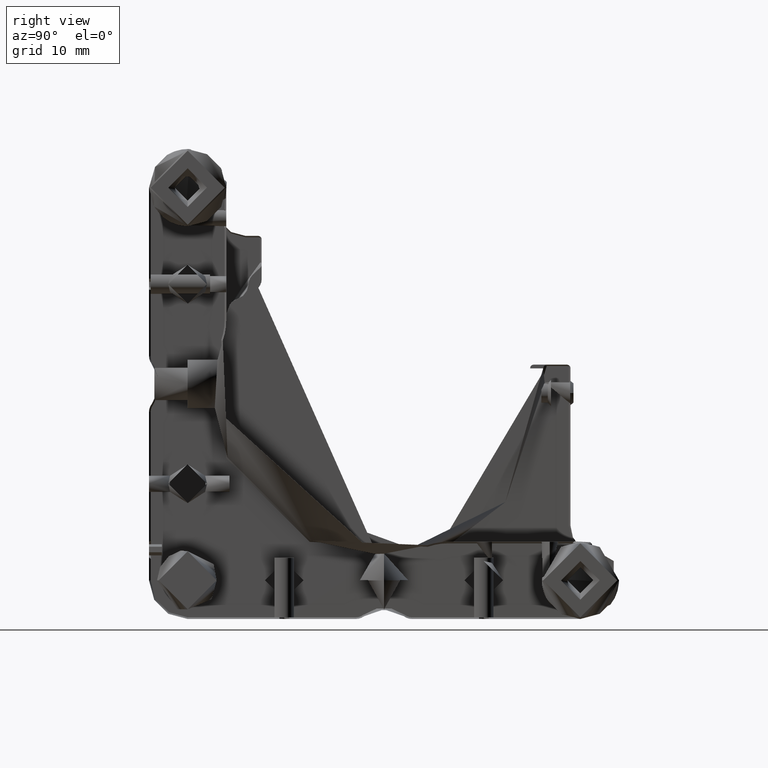
[diagram: clean part render]
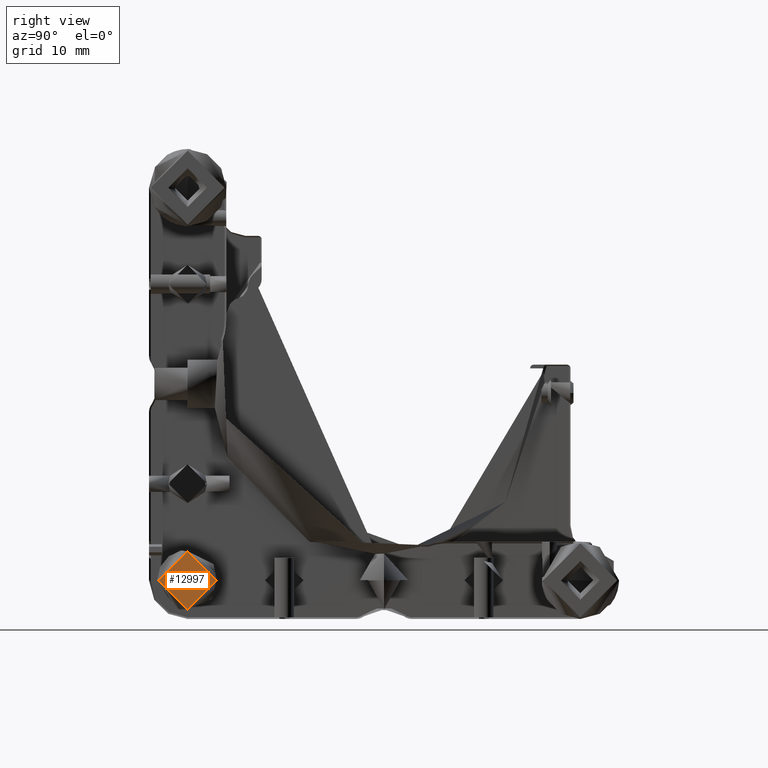
[diagram: same view with one face highlighted and labeled with its STEP entity id]
A machine part, right view. The second image highlights one B-rep face of the part: STEP entity #12997.
In plain terms, the highlighted planar face has unit normal (1, -0, 0).
Its self-contained STEP definition (entity closure, byte-faithful):
#575 = PLANE ( 'NONE',  #2988 ) ;
#620 = ORIENTED_EDGE ( 'NONE', *, *, #11893, .T. ) ;
#1664 = DIRECTION ( 'NONE',  ( 0.000000000000000000, -1.000000000000000000, 0.000000000000000000 ) ) ;
#1684 = EDGE_LOOP ( 'NONE', ( #620 ) ) ;
#2966 = CIRCLE ( 'NONE', #6213, 4.500000000025969449 ) ;
#2988 = AXIS2_PLACEMENT_3D ( 'NONE', #12667, #8250, #4988 ) ;
#4675 = CARTESIAN_POINT ( 'NONE',  ( 14.52438067701862145, -36.31707137697920018, 21.49999999999999645 ) ) ;
#4988 = DIRECTION ( 'NONE',  ( 0.000000000000000000, 0.000000000000000000, -1.000000000000000000 ) ) ;
#6213 = AXIS2_PLACEMENT_3D ( 'NONE', #12608, #13708, #1664 ) ;
#8250 = DIRECTION ( 'NONE',  ( 1.000000000000000000, -0.000000000000000000, 0.000000000000000000 ) ) ;
#11893 = EDGE_CURVE ( 'NONE', #12497, #12497, #2966, .T. ) ;
#12497 = VERTEX_POINT ( 'NONE', #4675 ) ;
#12608 = CARTESIAN_POINT ( 'NONE',  ( 14.52438067701862145, -31.81707137695322629, 21.49999999999999645 ) ) ;
#12667 = CARTESIAN_POINT ( 'NONE',  ( 14.52438067708579972, -31.81707137695322629, 21.49999999999999645 ) ) ;
#12742 = FACE_OUTER_BOUND ( 'NONE', #1684, .T. ) ;
#12997 = ADVANCED_FACE ( 'NONE', ( #12742 ), #575, .T. ) ;
#13708 = DIRECTION ( 'NONE',  ( 1.000000000000000000, 1.781133264272992413E-16, 4.024059420721938592E-17 ) ) ;